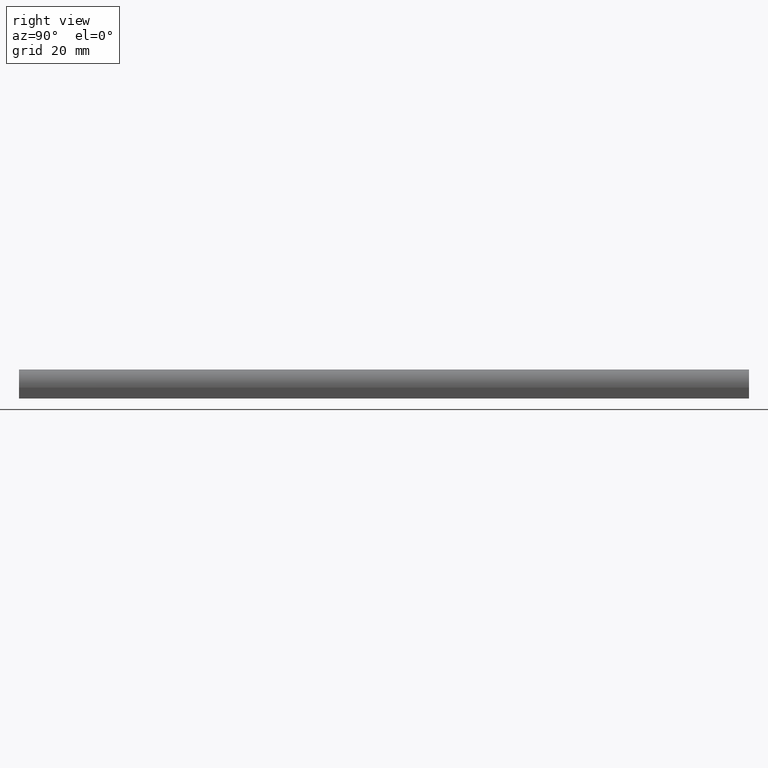
[diagram: clean part render]
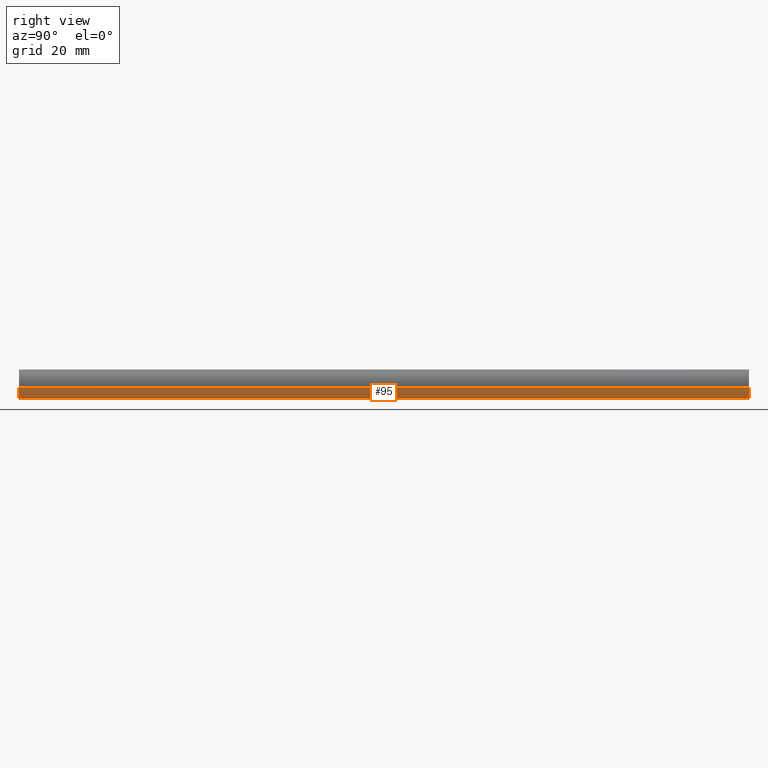
[diagram: same view with one face highlighted and labeled with its STEP entity id]
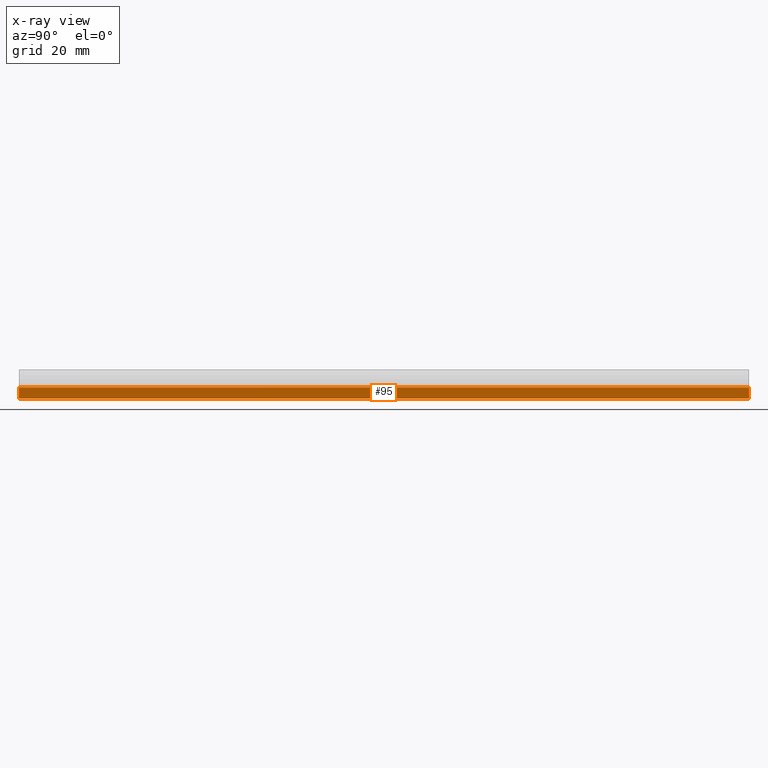
[diagram: x-ray of the same camera — body ghosted, the highlighted face saturated]
A machine part, right view. The second image highlights one B-rep face of the part: STEP entity #95.
The next image is the same camera in x-ray: the body ghosted, the highlighted face saturated — about 0% of this face is hidden behind the body in this view.
In plain terms, the highlighted planar face has unit normal (1, 0, 0).
Its self-contained STEP definition (entity closure, byte-faithful):
#5 = PLANE ( 'NONE',  #154 ) ;
#15 = LINE ( 'NONE', #214, #73 ) ;
#19 = VERTEX_POINT ( 'NONE', #204 ) ;
#27 = VERTEX_POINT ( 'NONE', #132 ) ;
#28 = ORIENTED_EDGE ( 'NONE', *, *, #56, .F. ) ;
#30 = EDGE_LOOP ( 'NONE', ( #28, #76, #124, #98 ) ) ;
#37 = CARTESIAN_POINT ( 'NONE',  ( 5.000000000000000000, 200.0000000000000000, -0.9999999999999859000 ) ) ;
#38 = CARTESIAN_POINT ( 'NONE',  ( 5.000000000000000000, 1000.000000000000000, -4.000000000000000000 ) ) ;
#43 = CARTESIAN_POINT ( 'NONE',  ( 5.000000000000000000, 0.0000000000000000000, -0.9999999999999859000 ) ) ;
#52 = VECTOR ( 'NONE', #227, 1000.000000000000000 ) ;
#56 = EDGE_CURVE ( 'NONE', #27, #129, #143, .T. ) ;
#60 = FACE_OUTER_BOUND ( 'NONE', #30, .T. ) ;
#62 = CARTESIAN_POINT ( 'NONE',  ( 5.000000000000000000, 200.0000000000000000, 0.0000000000000000000 ) ) ;
#73 = VECTOR ( 'NONE', #237, 1000.000000000000000 ) ;
#75 = VERTEX_POINT ( 'NONE', #37 ) ;
#76 = ORIENTED_EDGE ( 'NONE', *, *, #112, .F. ) ;
#79 = LINE ( 'NONE', #62, #107 ) ;
#87 = VECTOR ( 'NONE', #141, 1000.000000000000000 ) ;
#95 = ADVANCED_FACE ( 'NONE', ( #60 ), #5, .T. ) ;
#98 = ORIENTED_EDGE ( 'NONE', *, *, #100, .T. ) ;
#100 = EDGE_CURVE ( 'NONE', #75, #129, #186, .T. ) ;
#107 = VECTOR ( 'NONE', #185, 1000.000000000000000 ) ;
#112 = EDGE_CURVE ( 'NONE', #19, #27, #15, .T. ) ;
#114 = DIRECTION ( 'NONE',  ( 1.000000000000000000, 0.0000000000000000000, 0.0000000000000000000 ) ) ;
#124 = ORIENTED_EDGE ( 'NONE', *, *, #151, .T. ) ;
#128 = CARTESIAN_POINT ( 'NONE',  ( 5.000000000000000000, 0.0000000000000000000, 0.0000000000000000000 ) ) ;
#129 = VERTEX_POINT ( 'NONE', #43 ) ;
#132 = CARTESIAN_POINT ( 'NONE',  ( 5.000000000000000000, 0.0000000000000000000, -4.000000000000000000 ) ) ;
#141 = DIRECTION ( 'NONE',  ( 0.0000000000000000000, -1.000000000000000000, 0.0000000000000000000 ) ) ;
#143 = LINE ( 'NONE', #128, #52 ) ;
#151 = EDGE_CURVE ( 'NONE', #19, #75, #79, .T. ) ;
#154 = AXIS2_PLACEMENT_3D ( 'NONE', #38, #114, #198 ) ;
#185 = DIRECTION ( 'NONE',  ( -0.0000000000000000000, -0.0000000000000000000, 1.000000000000000000 ) ) ;
#186 = LINE ( 'NONE', #220, #87 ) ;
#198 = DIRECTION ( 'NONE',  ( 0.0000000000000000000, 0.0000000000000000000, -1.000000000000000000 ) ) ;
#204 = CARTESIAN_POINT ( 'NONE',  ( 5.000000000000000000, 200.0000000000000000, -4.000000000000000000 ) ) ;
#214 = CARTESIAN_POINT ( 'NONE',  ( 5.000000000000000000, 1000.000000000000000, -4.000000000000000000 ) ) ;
#220 = CARTESIAN_POINT ( 'NONE',  ( 5.000000000000000000, 1000.000000000000000, -0.9999999999999859000 ) ) ;
#227 = DIRECTION ( 'NONE',  ( -0.0000000000000000000, -0.0000000000000000000, 1.000000000000000000 ) ) ;
#237 = DIRECTION ( 'NONE',  ( 0.0000000000000000000, -1.000000000000000000, 0.0000000000000000000 ) ) ;